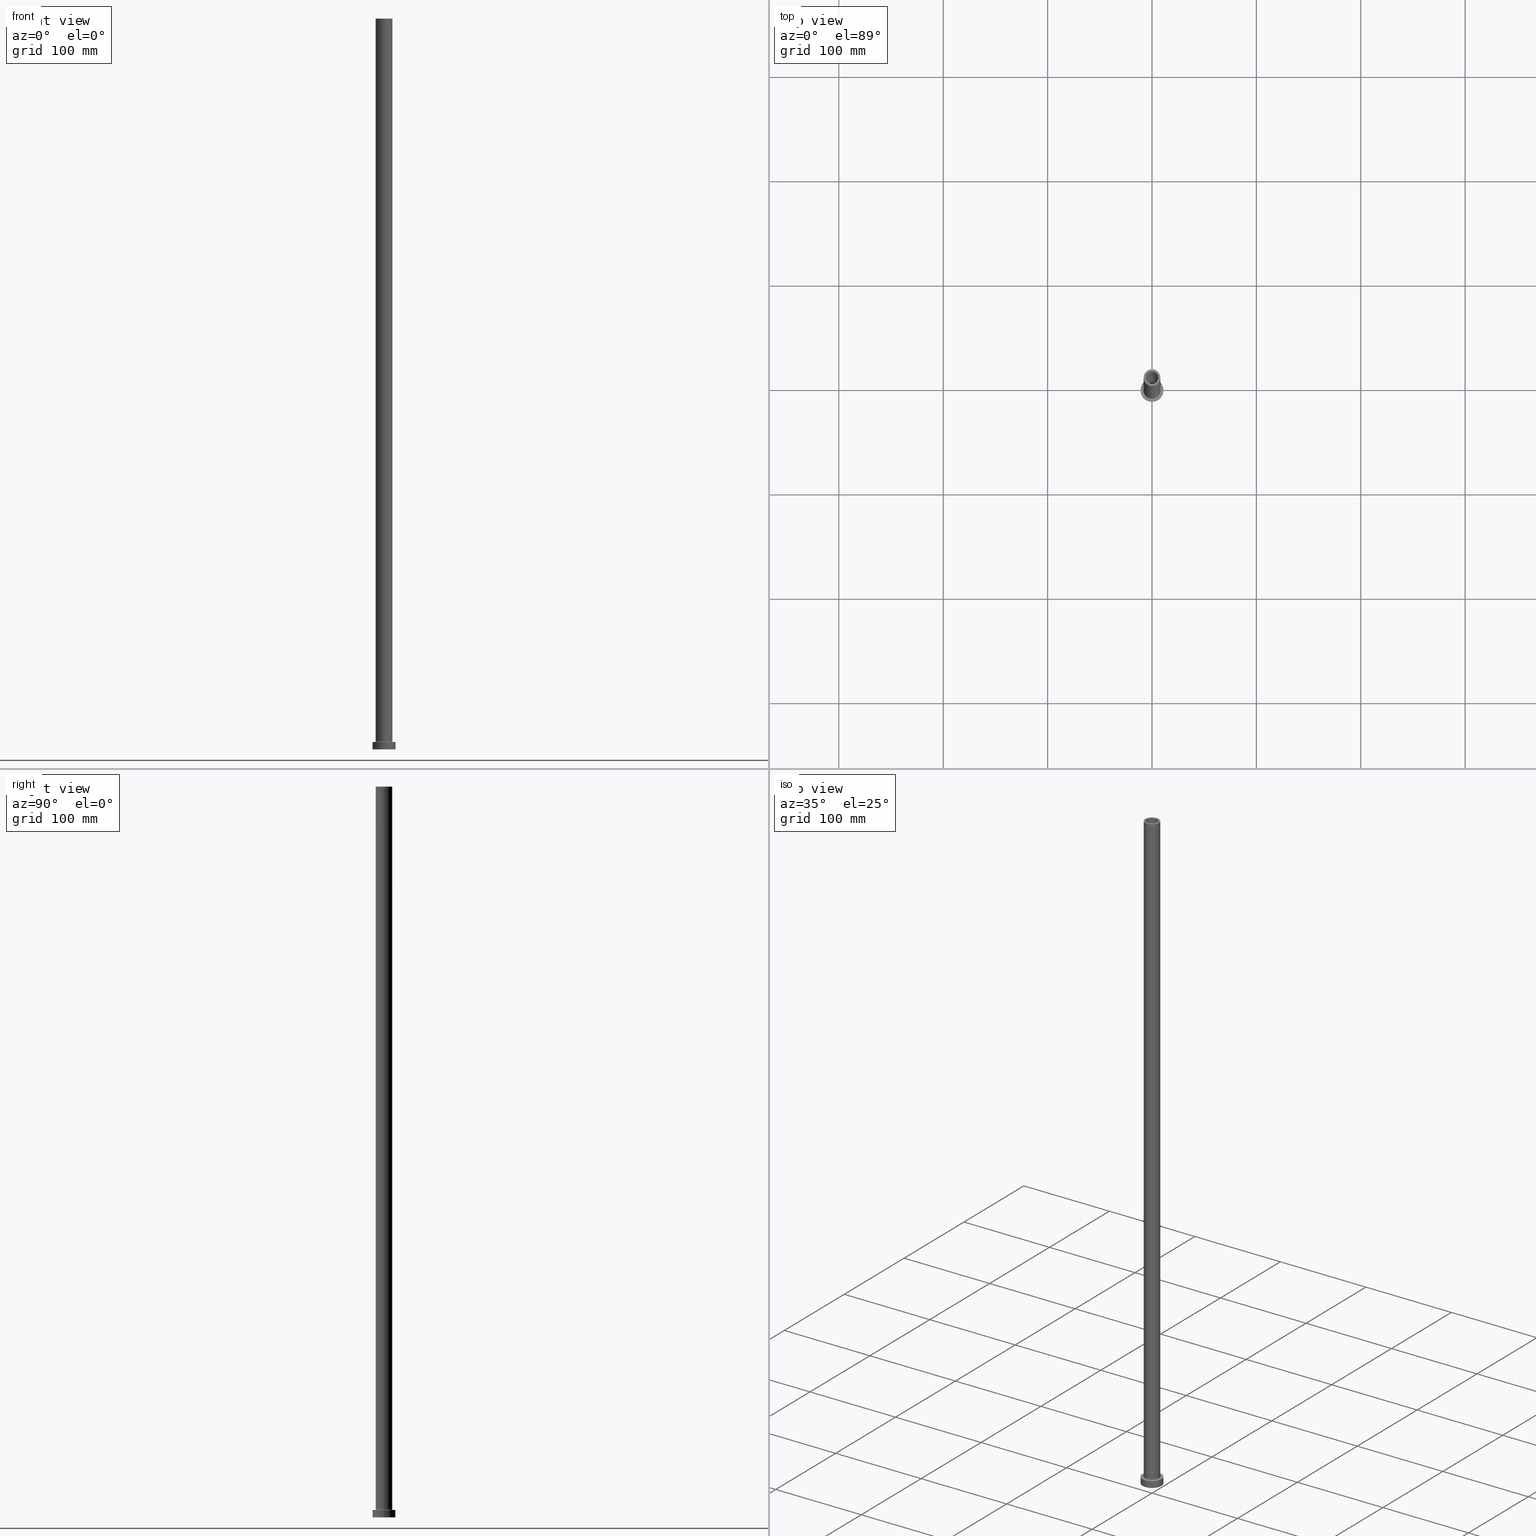
[diagram: canonical four-view strip — front | top / right | iso, engineering-drawing reading convention]
A machine part, canonical four-view strip (front | top / right | iso — engineering-drawing reading convention). The complete STEP part file that produces these views, byte-faithful:
ISO-10303-21;
HEADER;
FILE_DESCRIPTION (( 'STEP AP203' ),
    '1' );
FILE_NAME ('1c9a.STEP',
    '2023-02-13T09:05:09',
    ( '' ),
    ( '' ),
    'SwSTEP 2.0',
    'SolidWorks 2019',
    '' );
FILE_SCHEMA (( 'CONFIG_CONTROL_DESIGN' ));
ENDSEC;

DATA;
#1 = AXIS2_PLACEMENT_3D ( 'NONE', #311, #458, #284 ) ;
#2 = APPROVAL_DATE_TIME ( #246, #187 ) ;
#3 = EDGE_CURVE ( 'NONE', #339, #405, #453, .T. ) ;
#4 = DIRECTION ( 'NONE',  ( -0.000000000000000000, -0.000000000000000000, -1.000000000000000000 ) ) ;
#5 = TOROIDAL_SURFACE ( 'NONE', #326, 8.699999999999999289, 0.6999999999999999556 ) ;
#6 = CARTESIAN_POINT ( 'NONE',  ( 0.000000000000000000, 0.000000000000000000, 654.9999999999998863 ) ) ;
#7 = CARTESIAN_POINT ( 'NONE',  ( 0.000000000000000000, 0.000000000000000000, 654.9999999999998863 ) ) ;
#8 = EDGE_LOOP ( 'NONE', ( #28, #397 ) ) ;
#9 = AXIS2_PLACEMENT_3D ( 'NONE', #349, #423, #21 ) ;
#10 = DIRECTION ( 'NONE',  ( -1.000000000000000000, 0.000000000000000000, 0.000000000000000000 ) ) ;
#11 = DIRECTION ( 'NONE',  ( 1.000000000000000000, 0.000000000000000000, 0.000000000000000000 ) ) ;
#12 = APPLICATION_CONTEXT ( 'configuration controlled 3d designs of mechanical parts and assemblies' ) ;
#13 = EDGE_CURVE ( 'NONE', #455, #460, #337, .T. ) ;
#14 = DATE_AND_TIME ( #374, #342 ) ;
#15 = PLANE ( 'NONE',  #72 ) ;
#16 = DIRECTION ( 'NONE',  ( 0.000000000000000000, 0.000000000000000000, 1.000000000000000000 ) ) ;
#17 = VECTOR ( 'NONE', #412, 1000.000000000000000 ) ;
#18 = CC_DESIGN_APPROVAL ( #442, ( #256 ) ) ;
#19 = EDGE_CURVE ( 'NONE', #281, #288, #308, .T. ) ;
#20 = PERSON_AND_ORGANIZATION ( #249, #69 ) ;
#21 = DIRECTION ( 'NONE',  ( -1.000000000000000000, 0.000000000000000000, 0.000000000000000000 ) ) ;
#22 = DIRECTION ( 'NONE',  ( 0.000000000000000000, 0.000000000000000000, -1.000000000000000000 ) ) ;
#23 = APPROVAL_DATE_TIME ( #54, #336 ) ;
#24 = EDGE_LOOP ( 'NONE', ( #95, #147 ) ) ;
#25 = DIRECTION ( 'NONE',  ( -1.000000000000000000, 0.000000000000000000, 0.000000000000000000 ) ) ;
#26 = APPROVAL_ROLE ( '' ) ;
#27 = ORIENTED_EDGE ( 'NONE', *, *, #388, .T. ) ;
#28 = ORIENTED_EDGE ( 'NONE', *, *, #109, .F. ) ;
#29 = CALENDAR_DATE ( 2023, 13, 2 ) ;
#30 = EDGE_LOOP ( 'NONE', ( #358, #70, #162, #276 ) ) ;
#31 = EDGE_CURVE ( 'NONE', #307, #455, #145, .T. ) ;
#32 = DIRECTION ( 'NONE',  ( 0.000000000000000000, 0.000000000000000000, 1.000000000000000000 ) ) ;
#33 = DIRECTION ( 'NONE',  ( 0.000000000000000000, 0.000000000000000000, 1.000000000000000000 ) ) ;
#34 = CARTESIAN_POINT ( 'NONE',  ( 8.000000000000000000, 9.797174393178825657E-16, 700.0000000000000000 ) ) ;
#35 = VERTEX_POINT ( 'NONE', #205 ) ;
#36 = CARTESIAN_POINT ( 'NONE',  ( 0.000000000000000000, 0.000000000000000000, 672.3948268171890277 ) ) ;
#37 = ORIENTED_EDGE ( 'NONE', *, *, #388, .F. ) ;
#38 = VECTOR ( 'NONE', #457, 1000.000000000000000 ) ;
#39 = ADVANCED_FACE ( 'NONE', ( #85 ), #236, .T. ) ;
#40 = DIRECTION ( 'NONE',  ( 0.000000000000000000, 0.000000000000000000, 1.000000000000000000 ) ) ;
#41 = DIRECTION ( 'NONE',  ( -1.000000000000000000, 0.000000000000000000, 0.000000000000000000 ) ) ;
#42 = ORIENTED_EDGE ( 'NONE', *, *, #3, .T. ) ;
#43 = AXIS2_PLACEMENT_3D ( 'NONE', #159, #210, #452 ) ;
#44 = ORIENTED_EDGE ( 'NONE', *, *, #65, .F. ) ;
#45 = EDGE_CURVE ( 'NONE', #405, #180, #302, .T. ) ;
#46 = AXIS2_PLACEMENT_3D ( 'NONE', #151, #279, #216 ) ;
#47 = CIRCLE ( 'NONE', #310, 8.699999999999999289 ) ;
#48 = DIRECTION ( 'NONE',  ( 1.224646799147353207E-16, 1.000000000000000000, -0.000000000000000000 ) ) ;
#49 = APPLICATION_PROTOCOL_DEFINITION ( 'international standard', 'config_control_design', 1994, #189 ) ;
#50 = CARTESIAN_POINT ( 'NONE',  ( -6.150000000000000355, 0.000000000000000000, 654.9999999999998863 ) ) ;
#51 = PERSON_AND_ORGANIZATION ( #249, #69 ) ;
#52 = ADVANCED_FACE ( 'NONE', ( #270, #238 ), #15, .F. ) ;
#53 = DIRECTION ( 'NONE',  ( 1.000000000000000000, 0.000000000000000000, 0.000000000000000000 ) ) ;
#54 = DATE_AND_TIME ( #404, #403 ) ;
#55 = CARTESIAN_POINT ( 'NONE',  ( 0.000000000000000000, 0.000000000000000000, 0.000000000000000000 ) ) ;
#56 = LINE ( 'NONE', #199, #432 ) ;
#57 = ORIENTED_EDGE ( 'NONE', *, *, #425, .T. ) ;
#58 = ORIENTED_EDGE ( 'NONE', *, *, #446, .T. ) ;
#59 = PERSON_AND_ORGANIZATION_ROLE ( 'creator' ) ;
#60 = CARTESIAN_POINT ( 'NONE',  ( 11.00000000000000000, 1.347111479062088405E-15, 7.000000000000000000 ) ) ;
#61 = VERTEX_POINT ( 'NONE', #50 ) ;
#62 = ORIENTED_EDGE ( 'NONE', *, *, #325, .F. ) ;
#63 = DIRECTION ( 'NONE',  ( 0.000000000000000000, 0.000000000000000000, 1.000000000000000000 ) ) ;
#64 = CYLINDRICAL_SURFACE ( 'NONE', #43, 6.000000000000000888 ) ;
#65 = EDGE_CURVE ( 'NONE', #413, #257, #56, .T. ) ;
#66 = FACE_OUTER_BOUND ( 'NONE', #30, .T. ) ;
#67 = AXIS2_PLACEMENT_3D ( 'NONE', #7, #40, #233 ) ;
#68 = ADVANCED_FACE ( 'NONE', ( #153 ), #355, .F. ) ;
#69 = ORGANIZATION ( 'NEUR�EN�', 'NEUR�EN�', '' ) ;
#70 = ORIENTED_EDGE ( 'NONE', *, *, #65, .T. ) ;
#71 = EDGE_CURVE ( 'NONE', #307, #93, #76, .T. ) ;
#72 = AXIS2_PLACEMENT_3D ( 'NONE', #364, #331, #167 ) ;
#73 = CARTESIAN_POINT ( 'NONE',  ( -6.150000000000000355, 0.000000000000000000, 0.000000000000000000 ) ) ;
#74 = ORIENTED_EDGE ( 'NONE', *, *, #71, .F. ) ;
#75 = EDGE_LOOP ( 'NONE', ( #317, #451, #416, #217 ) ) ;
#76 = CIRCLE ( 'NONE', #241, 0.6999999999999992895 ) ;
#77 = ORIENTED_EDGE ( 'NONE', *, *, #436, .F. ) ;
#78 = DIRECTION ( 'NONE',  ( 0.000000000000000000, 0.000000000000000000, 1.000000000000000000 ) ) ;
#79 = CARTESIAN_POINT ( 'NONE',  ( -8.699999999999999289, 1.065442715258197248E-15, 7.000000000000020428 ) ) ;
#80 = ADVANCED_FACE ( 'NONE', ( #431 ), #113, .T. ) ;
#81 = CARTESIAN_POINT ( 'NONE',  ( 8.000000000000000000, 9.797174393178825657E-16, 7.700000000000040146 ) ) ;
#82 = CIRCLE ( 'NONE', #369, 6.000000000000000888 ) ;
#83 = DIRECTION ( 'NONE',  ( 0.000000000000000000, 0.000000000000000000, -1.000000000000000000 ) ) ;
#84 = APPROVAL_STATUS ( 'not_yet_approved' ) ;
#85 = FACE_OUTER_BOUND ( 'NONE', #361, .T. ) ;
#86 = PERSON_AND_ORGANIZATION ( #249, #69 ) ;
#87 = CARTESIAN_POINT ( 'NONE',  ( 6.150000000000000355, 7.531577814756222064E-16, 654.9999999999998863 ) ) ;
#88 = CARTESIAN_POINT ( 'NONE',  ( 11.00000000000000000, 1.347111479062088405E-15, 7.000000000000000000 ) ) ;
#89 = COORDINATED_UNIVERSAL_TIME_OFFSET ( 1, 0, .AHEAD. ) ;
#90 = AXIS2_PLACEMENT_3D ( 'NONE', #372, #341, #378 ) ;
#91 = ORIENTED_EDGE ( 'NONE', *, *, #71, .T. ) ;
#92 = DIRECTION ( 'NONE',  ( 1.000000000000000000, 0.000000000000000000, -0.000000000000000000 ) ) ;
#93 = VERTEX_POINT ( 'NONE', #79 ) ;
#94 = CARTESIAN_POINT ( 'NONE',  ( 0.000000000000000000, 0.000000000000000000, 0.000000000000000000 ) ) ;
#95 = ORIENTED_EDGE ( 'NONE', *, *, #278, .F. ) ;
#96 = PLANE ( 'NONE',  #282 ) ;
#97 = CARTESIAN_POINT ( 'NONE',  ( -11.00000000000000000, 0.000000000000000000, 0.000000000000000000 ) ) ;
#98 = DIRECTION ( 'NONE',  ( 1.000000000000000000, 0.000000000000000000, -0.000000000000000000 ) ) ;
#99 = CIRCLE ( 'NONE', #212, 6.150000000000000355 ) ;
#100 = CYLINDRICAL_SURFACE ( 'NONE', #291, 8.000000000000000000 ) ;
#101 = ORIENTED_EDGE ( 'NONE', *, *, #391, .F. ) ;
#102 = DIRECTION ( 'NONE',  ( 0.000000000000000000, 0.000000000000000000, -1.000000000000000000 ) ) ;
#103 = ADVANCED_FACE ( 'NONE', ( #230 ), #362, .T. ) ;
#104 = DIRECTION ( 'NONE',  ( -0.000000000000000000, -0.000000000000000000, -1.000000000000000000 ) ) ;
#105 = FACE_OUTER_BOUND ( 'NONE', #75, .T. ) ;
#106 = AXIS2_PLACEMENT_3D ( 'NONE', #424, #250, #156 ) ;
#107 = AXIS2_PLACEMENT_3D ( 'NONE', #401, #78, #261 ) ;
#108 = ORIENTED_EDGE ( 'NONE', *, *, #31, .F. ) ;
#109 = EDGE_CURVE ( 'NONE', #405, #339, #82, .T. ) ;
#110 = CC_DESIGN_PERSON_AND_ORGANIZATION_ASSIGNMENT ( #195, #59, ( #197 ) ) ;
#111 = CARTESIAN_POINT ( 'NONE',  ( 8.000000000000000000, 9.797174393178825657E-16, 700.0000000000000000 ) ) ;
#112 = ORIENTED_EDGE ( 'NONE', *, *, #235, .F. ) ;
#113 = CYLINDRICAL_SURFACE ( 'NONE', #247, 8.000000000000000000 ) ;
#114 = CC_DESIGN_PERSON_AND_ORGANIZATION_ASSIGNMENT ( #439, #125, ( #256 ) ) ;
#115 = AXIS2_PLACEMENT_3D ( 'NONE', #6, #143, #287 ) ;
#116 =( GEOMETRIC_REPRESENTATION_CONTEXT ( 3 ) GLOBAL_UNCERTAINTY_ASSIGNED_CONTEXT ( ( #165 ) ) GLOBAL_UNIT_ASSIGNED_CONTEXT ( ( #275, #239, #158 ) ) REPRESENTATION_CONTEXT ( 'NONE', 'WORKASPACE' ) );
#117 = ORIENTED_EDGE ( 'NONE', *, *, #319, .F. ) ;
#118 = ADVANCED_FACE ( 'NONE', ( #105 ), #100, .T. ) ;
#119 = APPROVAL_STATUS ( 'not_yet_approved' ) ;
#120 = DATE_TIME_ROLE ( 'creation_date' ) ;
#121 = DIRECTION ( 'NONE',  ( -0.000000000000000000, -0.000000000000000000, -1.000000000000000000 ) ) ;
#122 = VECTOR ( 'NONE', #121, 1000.000000000000000 ) ;
#123 = LINE ( 'NONE', #169, #17 ) ;
#124 = DIRECTION ( 'NONE',  ( 0.000000000000000000, 0.000000000000000000, -1.000000000000000000 ) ) ;
#125 = PERSON_AND_ORGANIZATION_ROLE ( 'creator' ) ;
#126 = ORIENTED_EDGE ( 'NONE', *, *, #409, .F. ) ;
#127 = CARTESIAN_POINT ( 'NONE',  ( 0.000000000000000000, 0.000000000000000000, 7.000000000000000000 ) ) ;
#128 = DATE_AND_TIME ( #161, #131 ) ;
#129 = CARTESIAN_POINT ( 'NONE',  ( 0.000000000000000000, 0.000000000000000000, 654.9999999999998863 ) ) ;
#130 = EDGE_LOOP ( 'NONE', ( #117, #112 ) ) ;
#131 = LOCAL_TIME ( 10, 5, 9.000000000000000000, #89 ) ;
#132 = EDGE_CURVE ( 'NONE', #35, #171, #172, .T. ) ;
#133 = EDGE_LOOP ( 'NONE', ( #62, #126 ) ) ;
#134 = ORIENTED_EDGE ( 'NONE', *, *, #45, .T. ) ;
#135 = FACE_OUTER_BOUND ( 'NONE', #136, .T. ) ;
#136 = EDGE_LOOP ( 'NONE', ( #27, #191 ) ) ;
#137 = FACE_OUTER_BOUND ( 'NONE', #333, .T. ) ;
#138 = FACE_OUTER_BOUND ( 'NONE', #223, .T. ) ;
#139 = ORIENTED_EDGE ( 'NONE', *, *, #19, .F. ) ;
#140 = AXIS2_PLACEMENT_3D ( 'NONE', #207, #268, #406 ) ;
#141 = LINE ( 'NONE', #382, #122 ) ;
#142 = VERTEX_POINT ( 'NONE', #181 ) ;
#143 = DIRECTION ( 'NONE',  ( 0.000000000000000000, 0.000000000000000000, 1.000000000000000000 ) ) ;
#144 = FACE_OUTER_BOUND ( 'NONE', #309, .T. ) ;
#145 = CIRCLE ( 'NONE', #426, 8.000000000000000000 ) ;
#146 = AXIS2_PLACEMENT_3D ( 'NONE', #248, #343, #178 ) ;
#147 = ORIENTED_EDGE ( 'NONE', *, *, #360, .F. ) ;
#148 = ORIENTED_EDGE ( 'NONE', *, *, #347, .T. ) ;
#149 = AXIS2_PLACEMENT_3D ( 'NONE', #36, #102, #385 ) ;
#150 = CC_DESIGN_APPROVAL ( #336, ( #197 ) ) ;
#151 = CARTESIAN_POINT ( 'NONE',  ( 8.699999999999999289, 0.000000000000000000, 7.700000000000040146 ) ) ;
#152 = APPROVAL_DATE_TIME ( #14, #442 ) ;
#153 = FACE_OUTER_BOUND ( 'NONE', #383, .T. ) ;
#154 = CIRCLE ( 'NONE', #140, 6.150000000000000355 ) ;
#155 = DIRECTION ( 'NONE',  ( 1.000000000000000000, 0.000000000000000000, 0.000000000000000000 ) ) ;
#156 = DIRECTION ( 'NONE',  ( 1.000000000000000000, 0.000000000000000000, 0.000000000000000000 ) ) ;
#157 = ADVANCED_BREP_SHAPE_REPRESENTATION ( '1c9a', ( #173, #323 ), #116 ) ;
#158 =( NAMED_UNIT ( * ) SI_UNIT ( $, .STERADIAN. ) SOLID_ANGLE_UNIT ( ) );
#159 = CARTESIAN_POINT ( 'NONE',  ( 0.000000000000000000, 0.000000000000000000, 700.0000000000000000 ) ) ;
#160 = DESIGN_CONTEXT ( 'detailed design', #189, 'design' ) ;
#161 = CALENDAR_DATE ( 2023, 13, 2 ) ;
#162 = ORIENTED_EDGE ( 'NONE', *, *, #409, .T. ) ;
#163 = CARTESIAN_POINT ( 'NONE',  ( -11.00000000000000000, 0.000000000000000000, 7.000000000000000000 ) ) ;
#164 = ORIENTED_EDGE ( 'NONE', *, *, #132, .T. ) ;
#165 = UNCERTAINTY_MEASURE_WITH_UNIT (LENGTH_MEASURE( 1.000000000000000082E-05 ), #275, 'distance_accuracy_value', 'NONE');
#166 = ADVANCED_FACE ( 'NONE', ( #138 ), #5, .F. ) ;
#167 = DIRECTION ( 'NONE',  ( 1.000000000000000000, 0.000000000000000000, -0.000000000000000000 ) ) ;
#168 = PERSON_AND_ORGANIZATION ( #249, #69 ) ;
#169 = CARTESIAN_POINT ( 'NONE',  ( 6.000000000000000888, 7.347880794884120722E-16, 700.0000000000000000 ) ) ;
#170 = FACE_BOUND ( 'NONE', #234, .T. ) ;
#171 = VERTEX_POINT ( 'NONE', #34 ) ;
#172 = CIRCLE ( 'NONE', #146, 8.000000000000000000 ) ;
#173 = MANIFOLD_SOLID_BREP ( 'Odebrat vysunut�m4', #389 ) ;
#174 = CARTESIAN_POINT ( 'NONE',  ( -11.00000000000000000, 0.000000000000000000, 7.000000000000000000 ) ) ;
#175 = EDGE_LOOP ( 'NONE', ( #390, #202, #421, #354 ) ) ;
#176 = EDGE_LOOP ( 'NONE', ( #164, #353 ) ) ;
#177 = CARTESIAN_POINT ( 'NONE',  ( 0.000000000000000000, 0.000000000000000000, 0.000000000000000000 ) ) ;
#178 = DIRECTION ( 'NONE',  ( 1.000000000000000000, 0.000000000000000000, 0.000000000000000000 ) ) ;
#179 = CIRCLE ( 'NONE', #67, 6.000000000000000888 ) ;
#180 = VERTEX_POINT ( 'NONE', #420 ) ;
#181 = CARTESIAN_POINT ( 'NONE',  ( 6.000000000000000888, 7.347880794884120722E-16, 654.9999999999998863 ) ) ;
#182 = CARTESIAN_POINT ( 'NONE',  ( 0.000000000000000000, 0.000000000000000000, 7.000000000000000000 ) ) ;
#183 = EDGE_CURVE ( 'NONE', #35, #307, #141, .T. ) ;
#184 = CIRCLE ( 'NONE', #438, 6.150000000000000355 ) ;
#185 = LINE ( 'NONE', #111, #38 ) ;
#186 = EDGE_CURVE ( 'NONE', #171, #455, #185, .T. ) ;
#187 = APPROVAL ( #119, 'NEUR�EN�' ) ;
#188 = DIRECTION ( 'NONE',  ( -0.000000000000000000, -0.000000000000000000, -1.000000000000000000 ) ) ;
#189 = APPLICATION_CONTEXT ( 'configuration controlled 3d designs of mechanical parts and assemblies' ) ;
#190 = CIRCLE ( 'NONE', #384, 11.00000000000000000 ) ;
#191 = ORIENTED_EDGE ( 'NONE', *, *, #19, .T. ) ;
#192 = APPLICATION_PROTOCOL_DEFINITION ( 'international standard', 'config_control_design', 1994, #12 ) ;
#193 = CARTESIAN_POINT ( 'NONE',  ( 0.000000000000000000, 0.000000000000000000, 700.0000000000000000 ) ) ;
#194 = DIRECTION ( 'NONE',  ( -0.000000000000000000, -0.000000000000000000, -1.000000000000000000 ) ) ;
#195 = PERSON_AND_ORGANIZATION ( #249, #69 ) ;
#196 = AXIS2_PLACEMENT_3D ( 'NONE', #94, #415, #92 ) ;
#197 = PRODUCT_DEFINITION_FORMATION_WITH_SPECIFIED_SOURCE ( 'LIBOVOLN�', '', #454, .NOT_KNOWN. ) ;
#198 = ADVANCED_FACE ( 'NONE', ( #137 ), #64, .F. ) ;
#199 = CARTESIAN_POINT ( 'NONE',  ( 6.150000000000000355, 7.531577814756222064E-16, 672.3948268171890277 ) ) ;
#200 = EDGE_CURVE ( 'NONE', #455, #307, #340, .T. ) ;
#201 = CARTESIAN_POINT ( 'NONE',  ( 8.699999999999999289, 0.000000000000000000, 7.000000000000020428 ) ) ;
#202 = ORIENTED_EDGE ( 'NONE', *, *, #186, .T. ) ;
#203 = LINE ( 'NONE', #163, #356 ) ;
#204 = CARTESIAN_POINT ( 'NONE',  ( 6.150000000000000355, 7.531577814756222064E-16, 0.000000000000000000 ) ) ;
#205 = CARTESIAN_POINT ( 'NONE',  ( -8.000000000000000000, 0.000000000000000000, 700.0000000000000000 ) ) ;
#206 = PERSON_AND_ORGANIZATION ( #249, #69 ) ;
#207 = CARTESIAN_POINT ( 'NONE',  ( 0.000000000000000000, 0.000000000000000000, 0.000000000000000000 ) ) ;
#208 = FACE_BOUND ( 'NONE', #8, .T. ) ;
#209 = ORIENTED_EDGE ( 'NONE', *, *, #231, .F. ) ;
#210 = DIRECTION ( 'NONE',  ( 0.000000000000000000, 0.000000000000000000, -1.000000000000000000 ) ) ;
#211 = VECTOR ( 'NONE', #83, 1000.000000000000000 ) ;
#212 = AXIS2_PLACEMENT_3D ( 'NONE', #214, #33, #218 ) ;
#213 = DIRECTION ( 'NONE',  ( 0.000000000000000000, 0.000000000000000000, 1.000000000000000000 ) ) ;
#214 = CARTESIAN_POINT ( 'NONE',  ( 0.000000000000000000, 0.000000000000000000, 654.9999999999998863 ) ) ;
#215 = DIRECTION ( 'NONE',  ( -0.000000000000000000, -0.000000000000000000, -1.000000000000000000 ) ) ;
#216 = DIRECTION ( 'NONE',  ( 0.000000000000000000, 0.000000000000000000, -1.000000000000000000 ) ) ;
#217 = ORIENTED_EDGE ( 'NONE', *, *, #31, .T. ) ;
#218 = DIRECTION ( 'NONE',  ( 1.000000000000000000, 0.000000000000000000, 0.000000000000000000 ) ) ;
#219 = CARTESIAN_POINT ( 'NONE',  ( 0.000000000000000000, 0.000000000000000000, 700.0000000000000000 ) ) ;
#220 = AXIS2_PLACEMENT_3D ( 'NONE', #177, #104, #301 ) ;
#221 = ADVANCED_FACE ( 'NONE', ( #208, #414 ), #96, .T. ) ;
#222 = DIRECTION ( 'NONE',  ( 0.000000000000000000, 0.000000000000000000, -1.000000000000000000 ) ) ;
#223 = EDGE_LOOP ( 'NONE', ( #74, #345, #379, #295 ) ) ;
#224 = ORIENTED_EDGE ( 'NONE', *, *, #436, .T. ) ;
#225 = DIRECTION ( 'NONE',  ( 0.000000000000000000, 0.000000000000000000, 1.000000000000000000 ) ) ;
#226 = AXIS2_PLACEMENT_3D ( 'NONE', #272, #368, #306 ) ;
#227 = LOCAL_TIME ( 10, 5, 9.000000000000000000, #294 ) ;
#228 = CC_DESIGN_PERSON_AND_ORGANIZATION_ASSIGNMENT ( #271, #408, ( #292 ) ) ;
#229 = EDGE_LOOP ( 'NONE', ( #289, #42, #134, #433 ) ) ;
#230 = FACE_OUTER_BOUND ( 'NONE', #371, .T. ) ;
#231 = EDGE_CURVE ( 'NONE', #281, #254, #407, .T. ) ;
#232 = CARTESIAN_POINT ( 'NONE',  ( -8.699999999999999289, 1.065442715258197248E-15, 7.700000000000040146 ) ) ;
#233 = DIRECTION ( 'NONE',  ( 1.000000000000000000, 0.000000000000000000, 0.000000000000000000 ) ) ;
#234 = EDGE_LOOP ( 'NONE', ( #57, #148 ) ) ;
#235 = EDGE_CURVE ( 'NONE', #254, #274, #190, .T. ) ;
#236 = CYLINDRICAL_SURFACE ( 'NONE', #322, 11.00000000000000000 ) ;
#237 = DIRECTION ( 'NONE',  ( -0.000000000000000000, -0.000000000000000000, -1.000000000000000000 ) ) ;
#238 = FACE_OUTER_BOUND ( 'NONE', #24, .T. ) ;
#239 =( NAMED_UNIT ( * ) PLANE_ANGLE_UNIT ( ) SI_UNIT ( $, .RADIAN. ) );
#240 = ORIENTED_EDGE ( 'NONE', *, *, #325, .T. ) ;
#241 = AXIS2_PLACEMENT_3D ( 'NONE', #232, #48, #395 ) ;
#242 = APPROVAL_PERSON_ORGANIZATION ( #168, #187, #263 ) ;
#243 = APPROVAL_ROLE ( '' ) ;
#244 = ORIENTED_EDGE ( 'NONE', *, *, #425, .F. ) ;
#245 = CARTESIAN_POINT ( 'NONE',  ( 0.000000000000000000, 0.000000000000000000, 7.000000000000000000 ) ) ;
#246 = DATE_AND_TIME ( #29, #299 ) ;
#247 = AXIS2_PLACEMENT_3D ( 'NONE', #258, #398, #400 ) ;
#248 = CARTESIAN_POINT ( 'NONE',  ( 0.000000000000000000, 0.000000000000000000, 700.0000000000000000 ) ) ;
#249 = PERSON ( 'NEUR�EN�', 'NEUR�EN�', 'NEUR�EN�', ('NEUR�EN�'), ('NEUR�EN�'), ('NEUR�EN�') ) ;
#250 = DIRECTION ( 'NONE',  ( 0.000000000000000000, 0.000000000000000000, 1.000000000000000000 ) ) ;
#251 = CC_DESIGN_DATE_AND_TIME_ASSIGNMENT ( #370, #120, ( #256 ) ) ;
#252 = AXIS2_PLACEMENT_3D ( 'NONE', #449, #327, #11 ) ;
#253 = CIRCLE ( 'NONE', #1, 11.00000000000000000 ) ;
#254 = VERTEX_POINT ( 'NONE', #280 ) ;
#255 = CARTESIAN_POINT ( 'NONE',  ( 0.000000000000000000, 0.000000000000000000, 7.700000000000040146 ) ) ;
#256 = PRODUCT_DEFINITION ( 'NEZN�M�', '', #197, #160 ) ;
#257 = VERTEX_POINT ( 'NONE', #204 ) ;
#258 = CARTESIAN_POINT ( 'NONE',  ( 0.000000000000000000, 0.000000000000000000, 700.0000000000000000 ) ) ;
#259 = CIRCLE ( 'NONE', #350, 8.699999999999999289 ) ;
#260 = ORIENTED_EDGE ( 'NONE', *, *, #109, .T. ) ;
#261 = DIRECTION ( 'NONE',  ( 1.000000000000000000, 0.000000000000000000, 0.000000000000000000 ) ) ;
#262 = ADVANCED_FACE ( 'NONE', ( #344, #330 ), #450, .F. ) ;
#263 = APPROVAL_ROLE ( '' ) ;
#264 = CC_DESIGN_PERSON_AND_ORGANIZATION_ASSIGNMENT ( #20, #444, ( #197 ) ) ;
#265 = CIRCLE ( 'NONE', #107, 8.000000000000000000 ) ;
#266 = DIRECTION ( 'NONE',  ( 0.000000000000000000, 0.000000000000000000, 1.000000000000000000 ) ) ;
#267 = CARTESIAN_POINT ( 'NONE',  ( 0.000000000000000000, 0.000000000000000000, 7.700000000000040146 ) ) ;
#268 = DIRECTION ( 'NONE',  ( -0.000000000000000000, -0.000000000000000000, -1.000000000000000000 ) ) ;
#269 = DIRECTION ( 'NONE',  ( 1.000000000000000000, 0.000000000000000000, -0.000000000000000000 ) ) ;
#270 = FACE_BOUND ( 'NONE', #387, .T. ) ;
#271 = PERSON_AND_ORGANIZATION ( #249, #69 ) ;
#272 = CARTESIAN_POINT ( 'NONE',  ( 0.000000000000000000, 0.000000000000000000, 7.000000000000000000 ) ) ;
#273 = DIRECTION ( 'NONE',  ( 1.000000000000000000, 0.000000000000000000, 0.000000000000000000 ) ) ;
#274 = VERTEX_POINT ( 'NONE', #97 ) ;
#275 =( LENGTH_UNIT ( ) NAMED_UNIT ( * ) SI_UNIT ( .MILLI., .METRE. ) );
#276 = ORIENTED_EDGE ( 'NONE', *, *, #335, .F. ) ;
#277 = CIRCLE ( 'NONE', #226, 11.00000000000000000 ) ;
#278 = EDGE_CURVE ( 'NONE', #61, #413, #184, .T. ) ;
#279 = DIRECTION ( 'NONE',  ( 0.000000000000000000, -1.000000000000000000, 0.000000000000000000 ) ) ;
#280 = CARTESIAN_POINT ( 'NONE',  ( 11.00000000000000000, 1.347111479062088405E-15, 0.000000000000000000 ) ) ;
#281 = VERTEX_POINT ( 'NONE', #60 ) ;
#282 = AXIS2_PLACEMENT_3D ( 'NONE', #300, #440, #269 ) ;
#283 = CC_DESIGN_APPROVAL ( #187, ( #292 ) ) ;
#284 = DIRECTION ( 'NONE',  ( 1.000000000000000000, 0.000000000000000000, 0.000000000000000000 ) ) ;
#285 = ORIENTED_EDGE ( 'NONE', *, *, #391, .T. ) ;
#286 = ADVANCED_FACE ( 'NONE', ( #170, #135 ), #422, .T. ) ;
#287 = DIRECTION ( 'NONE',  ( 1.000000000000000000, 0.000000000000000000, 0.000000000000000000 ) ) ;
#288 = VERTEX_POINT ( 'NONE', #174 ) ;
#289 = ORIENTED_EDGE ( 'NONE', *, *, #399, .F. ) ;
#290 = DIRECTION ( 'NONE',  ( 1.000000000000000000, 0.000000000000000000, 0.000000000000000000 ) ) ;
#291 = AXIS2_PLACEMENT_3D ( 'NONE', #219, #215, #314 ) ;
#292 = SECURITY_CLASSIFICATION ( '', '', #448 ) ;
#293 = CARTESIAN_POINT ( 'NONE',  ( -6.150000000000000355, 0.000000000000000000, 672.3948268171890277 ) ) ;
#294 = COORDINATED_UNIVERSAL_TIME_OFFSET ( 1, 0, .AHEAD. ) ;
#295 = ORIENTED_EDGE ( 'NONE', *, *, #347, .F. ) ;
#296 = VECTOR ( 'NONE', #124, 1000.000000000000000 ) ;
#297 = MECHANICAL_CONTEXT ( 'NONE', #12, 'mechanical' ) ;
#298 = DIRECTION ( 'NONE',  ( -0.000000000000000000, -0.000000000000000000, -1.000000000000000000 ) ) ;
#299 = LOCAL_TIME ( 10, 5, 9.000000000000000000, #318 ) ;
#300 = CARTESIAN_POINT ( 'NONE',  ( 0.000000000000000000, 0.000000000000000000, 700.0000000000000000 ) ) ;
#301 = DIRECTION ( 'NONE',  ( 1.000000000000000000, 0.000000000000000000, 0.000000000000000000 ) ) ;
#302 = LINE ( 'NONE', #443, #211 ) ;
#303 = COORDINATED_UNIVERSAL_TIME_OFFSET ( 1, 0, .AHEAD. ) ;
#304 = CALENDAR_DATE ( 2023, 13, 2 ) ;
#305 = ORIENTED_EDGE ( 'NONE', *, *, #319, .T. ) ;
#306 = DIRECTION ( 'NONE',  ( 1.000000000000000000, 0.000000000000000000, 0.000000000000000000 ) ) ;
#307 = VERTEX_POINT ( 'NONE', #381 ) ;
#308 = CIRCLE ( 'NONE', #106, 11.00000000000000000 ) ;
#309 = EDGE_LOOP ( 'NONE', ( #44, #377, #366, #240 ) ) ;
#310 = AXIS2_PLACEMENT_3D ( 'NONE', #182, #4, #392 ) ;
#311 = CARTESIAN_POINT ( 'NONE',  ( 0.000000000000000000, 0.000000000000000000, 0.000000000000000000 ) ) ;
#312 = DIRECTION ( 'NONE',  ( 1.000000000000000000, 0.000000000000000000, 0.000000000000000000 ) ) ;
#313 = CYLINDRICAL_SURFACE ( 'NONE', #149, 6.150000000000000355 ) ;
#314 = DIRECTION ( 'NONE',  ( -1.000000000000000000, 0.000000000000000000, 0.000000000000000000 ) ) ;
#315 = ORIENTED_EDGE ( 'NONE', *, *, #231, .T. ) ;
#316 = FACE_OUTER_BOUND ( 'NONE', #229, .T. ) ;
#317 = ORIENTED_EDGE ( 'NONE', *, *, #186, .F. ) ;
#318 = COORDINATED_UNIVERSAL_TIME_OFFSET ( 1, 0, .AHEAD. ) ;
#319 = EDGE_CURVE ( 'NONE', #274, #254, #253, .T. ) ;
#320 = CIRCLE ( 'NONE', #220, 6.150000000000000355 ) ;
#321 = APPROVAL_PERSON_ORGANIZATION ( #86, #442, #243 ) ;
#322 = AXIS2_PLACEMENT_3D ( 'NONE', #127, #194, #25 ) ;
#323 = AXIS2_PLACEMENT_3D ( 'NONE', #365, #266, #434 ) ;
#324 = ORIENTED_EDGE ( 'NONE', *, *, #235, .T. ) ;
#325 = EDGE_CURVE ( 'NONE', #429, #257, #320, .T. ) ;
#326 = AXIS2_PLACEMENT_3D ( 'NONE', #348, #32, #386 ) ;
#327 = DIRECTION ( 'NONE',  ( 0.000000000000000000, 0.000000000000000000, 1.000000000000000000 ) ) ;
#328 = APPROVAL_STATUS ( 'not_yet_approved' ) ;
#329 = AXIS2_PLACEMENT_3D ( 'NONE', #417, #346, #98 ) ;
#330 = FACE_OUTER_BOUND ( 'NONE', #130, .T. ) ;
#331 = DIRECTION ( 'NONE',  ( 0.000000000000000000, 0.000000000000000000, 1.000000000000000000 ) ) ;
#332 = COORDINATED_UNIVERSAL_TIME_OFFSET ( 1, 0, .AHEAD. ) ;
#333 = EDGE_LOOP ( 'NONE', ( #260, #393, #77, #367 ) ) ;
#334 = DATE_TIME_ROLE ( 'classification_date' ) ;
#335 = EDGE_CURVE ( 'NONE', #61, #429, #441, .T. ) ;
#336 = APPROVAL ( #84, 'NEUR�EN�' ) ;
#337 = CIRCLE ( 'NONE', #46, 0.7000000000000000666 ) ;
#338 = SHAPE_DEFINITION_REPRESENTATION ( #437, #157 ) ;
#339 = VERTEX_POINT ( 'NONE', #435 ) ;
#340 = CIRCLE ( 'NONE', #90, 8.000000000000000000 ) ;
#341 = DIRECTION ( 'NONE',  ( 0.000000000000000000, 0.000000000000000000, 1.000000000000000000 ) ) ;
#342 = LOCAL_TIME ( 10, 5, 9.000000000000000000, #332 ) ;
#343 = DIRECTION ( 'NONE',  ( 0.000000000000000000, 0.000000000000000000, 1.000000000000000000 ) ) ;
#344 = FACE_BOUND ( 'NONE', #133, .T. ) ;
#345 = ORIENTED_EDGE ( 'NONE', *, *, #200, .F. ) ;
#346 = DIRECTION ( 'NONE',  ( 0.000000000000000000, 0.000000000000000000, 1.000000000000000000 ) ) ;
#347 = EDGE_CURVE ( 'NONE', #93, #460, #259, .T. ) ;
#348 = CARTESIAN_POINT ( 'NONE',  ( 0.000000000000000000, 0.000000000000000000, 7.700000000000040146 ) ) ;
#349 = CARTESIAN_POINT ( 'NONE',  ( 0.000000000000000000, 0.000000000000000000, 700.0000000000000000 ) ) ;
#350 = AXIS2_PLACEMENT_3D ( 'NONE', #245, #351, #380 ) ;
#351 = DIRECTION ( 'NONE',  ( -0.000000000000000000, -0.000000000000000000, -1.000000000000000000 ) ) ;
#352 = CARTESIAN_POINT ( 'NONE',  ( 0.000000000000000000, 0.000000000000000000, 672.3948268171890277 ) ) ;
#353 = ORIENTED_EDGE ( 'NONE', *, *, #445, .T. ) ;
#354 = ORIENTED_EDGE ( 'NONE', *, *, #183, .F. ) ;
#355 = TOROIDAL_SURFACE ( 'NONE', #427, 8.699999999999999289, 0.6999999999999999556 ) ;
#356 = VECTOR ( 'NONE', #298, 1000.000000000000000 ) ;
#357 = ADVANCED_FACE ( 'NONE', ( #66 ), #313, .F. ) ;
#358 = ORIENTED_EDGE ( 'NONE', *, *, #278, .T. ) ;
#359 = CARTESIAN_POINT ( 'NONE',  ( 0.000000000000000000, 0.000000000000000000, 7.000000000000000000 ) ) ;
#360 = EDGE_CURVE ( 'NONE', #413, #61, #99, .T. ) ;
#361 = EDGE_LOOP ( 'NONE', ( #139, #315, #324, #101 ) ) ;
#362 = CYLINDRICAL_SURFACE ( 'NONE', #396, 11.00000000000000000 ) ;
#363 = AXIS2_PLACEMENT_3D ( 'NONE', #352, #222, #41 ) ;
#364 = CARTESIAN_POINT ( 'NONE',  ( 0.000000000000000000, 0.000000000000000000, 654.9999999999998863 ) ) ;
#365 = CARTESIAN_POINT ( 'NONE',  ( 0.000000000000000000, 0.000000000000000000, 0.000000000000000000 ) ) ;
#366 = ORIENTED_EDGE ( 'NONE', *, *, #335, .T. ) ;
#367 = ORIENTED_EDGE ( 'NONE', *, *, #45, .F. ) ;
#368 = DIRECTION ( 'NONE',  ( 0.000000000000000000, 0.000000000000000000, 1.000000000000000000 ) ) ;
#369 = AXIS2_PLACEMENT_3D ( 'NONE', #193, #16, #155 ) ;
#370 = DATE_AND_TIME ( #304, #227 ) ;
#371 = EDGE_LOOP ( 'NONE', ( #209, #37, #285, #305 ) ) ;
#372 = CARTESIAN_POINT ( 'NONE',  ( 0.000000000000000000, 0.000000000000000000, 7.700000000000040146 ) ) ;
#373 = ADVANCED_FACE ( 'NONE', ( #316 ), #461, .F. ) ;
#374 = CALENDAR_DATE ( 2023, 13, 2 ) ;
#375 = CARTESIAN_POINT ( 'NONE',  ( -6.000000000000000888, 0.000000000000000000, 700.0000000000000000 ) ) ;
#376 = DIRECTION ( 'NONE',  ( 0.000000000000000000, 0.000000000000000000, 1.000000000000000000 ) ) ;
#377 = ORIENTED_EDGE ( 'NONE', *, *, #360, .T. ) ;
#378 = DIRECTION ( 'NONE',  ( 1.000000000000000000, 0.000000000000000000, 0.000000000000000000 ) ) ;
#379 = ORIENTED_EDGE ( 'NONE', *, *, #13, .T. ) ;
#380 = DIRECTION ( 'NONE',  ( 1.000000000000000000, 0.000000000000000000, 0.000000000000000000 ) ) ;
#381 = CARTESIAN_POINT ( 'NONE',  ( -8.000000000000000000, 0.000000000000000000, 7.700000000000040146 ) ) ;
#382 = CARTESIAN_POINT ( 'NONE',  ( -8.000000000000000000, 0.000000000000000000, 700.0000000000000000 ) ) ;
#383 = EDGE_LOOP ( 'NONE', ( #108, #91, #244, #394 ) ) ;
#384 = AXIS2_PLACEMENT_3D ( 'NONE', #55, #213, #312 ) ;
#385 = DIRECTION ( 'NONE',  ( -1.000000000000000000, 0.000000000000000000, 0.000000000000000000 ) ) ;
#386 = DIRECTION ( 'NONE',  ( 1.000000000000000000, 0.000000000000000000, 0.000000000000000000 ) ) ;
#387 = EDGE_LOOP ( 'NONE', ( #224, #58 ) ) ;
#388 = EDGE_CURVE ( 'NONE', #288, #281, #277, .T. ) ;
#389 = CLOSED_SHELL ( 'NONE', ( #198, #357, #68, #80, #39, #103, #286, #262, #118, #221, #166, #430, #52, #373 ) ) ;
#390 = ORIENTED_EDGE ( 'NONE', *, *, #445, .F. ) ;
#391 = EDGE_CURVE ( 'NONE', #288, #274, #203, .T. ) ;
#392 = DIRECTION ( 'NONE',  ( 1.000000000000000000, 0.000000000000000000, 0.000000000000000000 ) ) ;
#393 = ORIENTED_EDGE ( 'NONE', *, *, #399, .T. ) ;
#394 = ORIENTED_EDGE ( 'NONE', *, *, #13, .F. ) ;
#395 = DIRECTION ( 'NONE',  ( -1.000000000000000000, 1.224646799147353207E-16, 0.000000000000000000 ) ) ;
#396 = AXIS2_PLACEMENT_3D ( 'NONE', #359, #188, #10 ) ;
#397 = ORIENTED_EDGE ( 'NONE', *, *, #3, .F. ) ;
#398 = DIRECTION ( 'NONE',  ( -0.000000000000000000, -0.000000000000000000, -1.000000000000000000 ) ) ;
#399 = EDGE_CURVE ( 'NONE', #339, #142, #123, .T. ) ;
#400 = DIRECTION ( 'NONE',  ( -1.000000000000000000, 0.000000000000000000, 0.000000000000000000 ) ) ;
#401 = CARTESIAN_POINT ( 'NONE',  ( 0.000000000000000000, 0.000000000000000000, 700.0000000000000000 ) ) ;
#402 = PERSON_AND_ORGANIZATION_ROLE ( 'design_owner' ) ;
#403 = LOCAL_TIME ( 10, 5, 9.000000000000000000, #303 ) ;
#404 = CALENDAR_DATE ( 2023, 13, 2 ) ;
#405 = VERTEX_POINT ( 'NONE', #375 ) ;
#406 = DIRECTION ( 'NONE',  ( 1.000000000000000000, 0.000000000000000000, 0.000000000000000000 ) ) ;
#407 = LINE ( 'NONE', #88, #419 ) ;
#408 = PERSON_AND_ORGANIZATION_ROLE ( 'classification_officer' ) ;
#409 = EDGE_CURVE ( 'NONE', #257, #429, #154, .T. ) ;
#410 = CIRCLE ( 'NONE', #115, 6.000000000000000888 ) ;
#411 = APPROVAL_PERSON_ORGANIZATION ( #206, #336, #26 ) ;
#412 = DIRECTION ( 'NONE',  ( 0.000000000000000000, 0.000000000000000000, -1.000000000000000000 ) ) ;
#413 = VERTEX_POINT ( 'NONE', #87 ) ;
#414 = FACE_OUTER_BOUND ( 'NONE', #176, .T. ) ;
#415 = DIRECTION ( 'NONE',  ( 0.000000000000000000, 0.000000000000000000, 1.000000000000000000 ) ) ;
#416 = ORIENTED_EDGE ( 'NONE', *, *, #183, .T. ) ;
#417 = CARTESIAN_POINT ( 'NONE',  ( 0.000000000000000000, 0.000000000000000000, 7.000000000000000000 ) ) ;
#418 = CC_DESIGN_DATE_AND_TIME_ASSIGNMENT ( #128, #334, ( #292 ) ) ;
#419 = VECTOR ( 'NONE', #237, 1000.000000000000000 ) ;
#420 = CARTESIAN_POINT ( 'NONE',  ( -6.000000000000000888, 0.000000000000000000, 654.9999999999998863 ) ) ;
#421 = ORIENTED_EDGE ( 'NONE', *, *, #200, .T. ) ;
#422 = PLANE ( 'NONE',  #329 ) ;
#423 = DIRECTION ( 'NONE',  ( 0.000000000000000000, 0.000000000000000000, -1.000000000000000000 ) ) ;
#424 = CARTESIAN_POINT ( 'NONE',  ( 0.000000000000000000, 0.000000000000000000, 7.000000000000000000 ) ) ;
#425 = EDGE_CURVE ( 'NONE', #460, #93, #47, .T. ) ;
#426 = AXIS2_PLACEMENT_3D ( 'NONE', #267, #63, #53 ) ;
#427 = AXIS2_PLACEMENT_3D ( 'NONE', #255, #225, #290 ) ;
#428 = CYLINDRICAL_SURFACE ( 'NONE', #363, 6.150000000000000355 ) ;
#429 = VERTEX_POINT ( 'NONE', #73 ) ;
#430 = ADVANCED_FACE ( 'NONE', ( #144 ), #428, .F. ) ;
#431 = FACE_OUTER_BOUND ( 'NONE', #175, .T. ) ;
#432 = VECTOR ( 'NONE', #22, 1000.000000000000000 ) ;
#433 = ORIENTED_EDGE ( 'NONE', *, *, #446, .F. ) ;
#434 = DIRECTION ( 'NONE',  ( 1.000000000000000000, 0.000000000000000000, 0.000000000000000000 ) ) ;
#435 = CARTESIAN_POINT ( 'NONE',  ( 6.000000000000000888, 7.347880794884120722E-16, 700.0000000000000000 ) ) ;
#436 = EDGE_CURVE ( 'NONE', #180, #142, #410, .T. ) ;
#437 = PRODUCT_DEFINITION_SHAPE ( 'NONE', 'NONE',  #256 ) ;
#438 = AXIS2_PLACEMENT_3D ( 'NONE', #129, #376, #273 ) ;
#439 = PERSON_AND_ORGANIZATION ( #249, #69 ) ;
#440 = DIRECTION ( 'NONE',  ( 0.000000000000000000, 0.000000000000000000, 1.000000000000000000 ) ) ;
#441 = LINE ( 'NONE', #293, #296 ) ;
#442 = APPROVAL ( #328, 'NEUR�EN�' ) ;
#443 = CARTESIAN_POINT ( 'NONE',  ( -6.000000000000000888, 0.000000000000000000, 700.0000000000000000 ) ) ;
#444 = PERSON_AND_ORGANIZATION_ROLE ( 'design_supplier' ) ;
#445 = EDGE_CURVE ( 'NONE', #171, #35, #265, .T. ) ;
#446 = EDGE_CURVE ( 'NONE', #142, #180, #179, .T. ) ;
#447 = PRODUCT_RELATED_PRODUCT_CATEGORY ( 'detail', '', ( #454 ) ) ;
#448 = SECURITY_CLASSIFICATION_LEVEL ( 'unclassified' ) ;
#449 = CARTESIAN_POINT ( 'NONE',  ( 0.000000000000000000, 0.000000000000000000, 700.0000000000000000 ) ) ;
#450 = PLANE ( 'NONE',  #196 ) ;
#451 = ORIENTED_EDGE ( 'NONE', *, *, #132, .F. ) ;
#452 = DIRECTION ( 'NONE',  ( -1.000000000000000000, 0.000000000000000000, 0.000000000000000000 ) ) ;
#453 = CIRCLE ( 'NONE', #252, 6.000000000000000888 ) ;
#454 = PRODUCT ( '1c9a', '1c9a', '', ( #297 ) ) ;
#455 = VERTEX_POINT ( 'NONE', #81 ) ;
#456 = CC_DESIGN_SECURITY_CLASSIFICATION ( #292, ( #197 ) ) ;
#457 = DIRECTION ( 'NONE',  ( -0.000000000000000000, -0.000000000000000000, -1.000000000000000000 ) ) ;
#458 = DIRECTION ( 'NONE',  ( 0.000000000000000000, 0.000000000000000000, 1.000000000000000000 ) ) ;
#459 = CC_DESIGN_PERSON_AND_ORGANIZATION_ASSIGNMENT ( #51, #402, ( #454 ) ) ;
#460 = VERTEX_POINT ( 'NONE', #201 ) ;
#461 = CYLINDRICAL_SURFACE ( 'NONE', #9, 6.000000000000000888 ) ;
ENDSEC;
END-ISO-10303-21;
